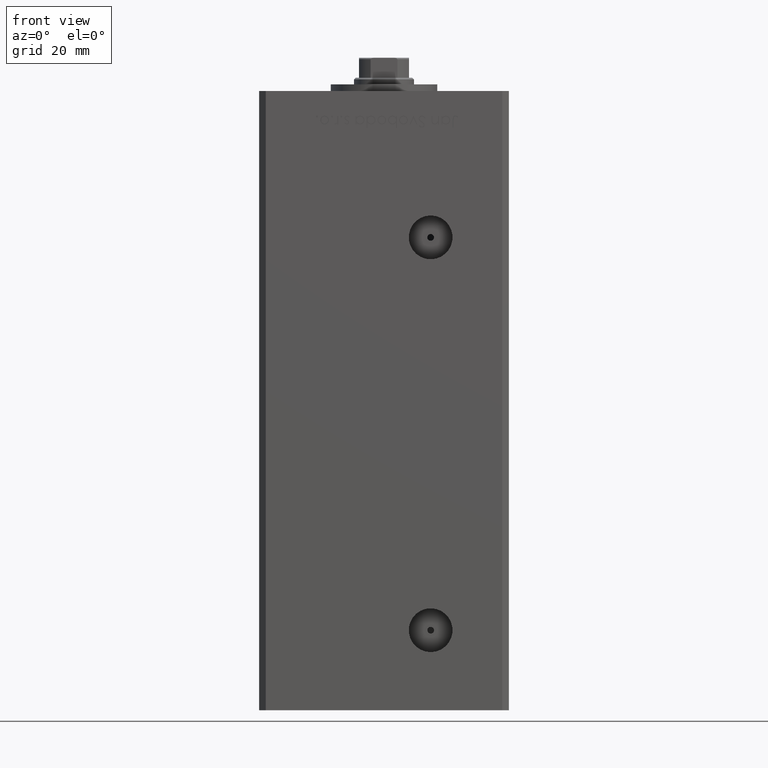
[diagram: clean part render]
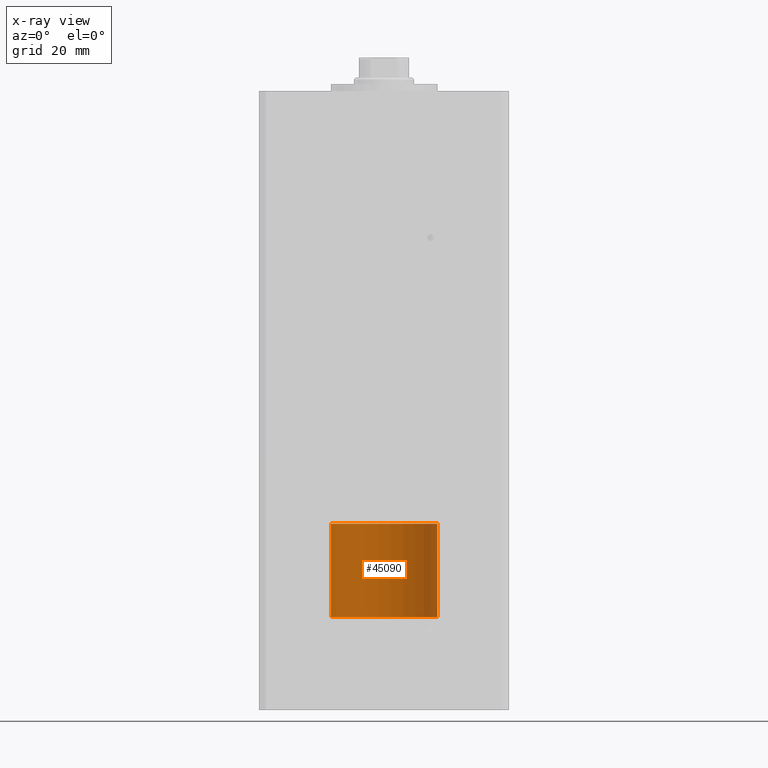
[diagram: x-ray — body ghosted, one internal face saturated and labeled with its STEP entity id]
A machine part, front view, then the same camera in x-ray: the body is ghosted and one INTERNAL B-rep face — a face not visible from any outside direction — is saturated and labeled: STEP entity #45090.
In plain terms, the highlighted cylindrical surface (partial cylindrical patch) has radius 16 mm, axis along (-0, -0, -1).
Its self-contained STEP definition (entity closure, byte-faithful):
#270 = VERTEX_POINT ( 'NONE', #8691 ) ;
#635 = EDGE_CURVE ( 'NONE', #47424, #50718, #23080, .T. ) ;
#1114 = LINE ( 'NONE', #42038, #22797 ) ;
#4270 = EDGE_CURVE ( 'NONE', #270, #47424, #51090, .T. ) ;
#6235 = AXIS2_PLACEMENT_3D ( 'NONE', #19974, #32669, #44788 ) ;
#8001 = VECTOR ( 'NONE', #15732, 1000.000000000000000 ) ;
#8143 = CYLINDRICAL_SURFACE ( 'NONE', #37228, 15.99999999999999645 ) ;
#8661 = CARTESIAN_POINT ( 'NONE',  ( 0.000000000000000000, 0.000000000000000000, 28.00000000000000000 ) ) ;
#8691 = CARTESIAN_POINT ( 'NONE',  ( 15.99999999999999645, 1.959434878635764737E-15, 28.00000000000000000 ) ) ;
#9416 = EDGE_LOOP ( 'NONE', ( #35901, #33212, #23389, #11003 ) ) ;
#11003 = ORIENTED_EDGE ( 'NONE', *, *, #30377, .F. ) ;
#15732 = DIRECTION ( 'NONE',  ( -0.000000000000000000, -0.000000000000000000, -1.000000000000000000 ) ) ;
#15995 = CARTESIAN_POINT ( 'NONE',  ( 15.99999999999999645, 1.959434878635764737E-15, 28.00000000000000000 ) ) ;
#16257 = EDGE_CURVE ( 'NONE', #270, #51050, #41931, .T. ) ;
#19974 = CARTESIAN_POINT ( 'NONE',  ( 0.000000000000000000, 0.000000000000000000, 0.000000000000000000 ) ) ;
#20529 = DIRECTION ( 'NONE',  ( -1.000000000000000000, 0.000000000000000000, 0.000000000000000000 ) ) ;
#22797 = VECTOR ( 'NONE', #45459, 1000.000000000000000 ) ;
#23080 = CIRCLE ( 'NONE', #6235, 15.99999999999999645 ) ;
#23389 = ORIENTED_EDGE ( 'NONE', *, *, #635, .T. ) ;
#26493 = DIRECTION ( 'NONE',  ( 1.000000000000000000, 0.000000000000000000, 0.000000000000000000 ) ) ;
#26770 = AXIS2_PLACEMENT_3D ( 'NONE', #47053, #30956, #26493 ) ;
#28482 = DIRECTION ( 'NONE',  ( -0.000000000000000000, -0.000000000000000000, -1.000000000000000000 ) ) ;
#30377 = EDGE_CURVE ( 'NONE', #51050, #50718, #1114, .T. ) ;
#30956 = DIRECTION ( 'NONE',  ( 0.000000000000000000, 0.000000000000000000, 1.000000000000000000 ) ) ;
#31920 = FACE_OUTER_BOUND ( 'NONE', #9416, .T. ) ;
#32669 = DIRECTION ( 'NONE',  ( 0.000000000000000000, 0.000000000000000000, 1.000000000000000000 ) ) ;
#33212 = ORIENTED_EDGE ( 'NONE', *, *, #4270, .T. ) ;
#35901 = ORIENTED_EDGE ( 'NONE', *, *, #16257, .F. ) ;
#37228 = AXIS2_PLACEMENT_3D ( 'NONE', #8661, #28482, #20529 ) ;
#40278 = CARTESIAN_POINT ( 'NONE',  ( 15.99999999999999645, 1.959434878635764737E-15, 0.000000000000000000 ) ) ;
#41931 = CIRCLE ( 'NONE', #26770, 15.99999999999999645 ) ;
#42038 = CARTESIAN_POINT ( 'NONE',  ( -15.99999999999999645, 0.000000000000000000, 28.00000000000000000 ) ) ;
#42060 = CARTESIAN_POINT ( 'NONE',  ( -15.99999999999999645, 0.000000000000000000, 0.000000000000000000 ) ) ;
#44328 = CARTESIAN_POINT ( 'NONE',  ( -15.99999999999999645, 0.000000000000000000, 28.00000000000000000 ) ) ;
#44788 = DIRECTION ( 'NONE',  ( 1.000000000000000000, 0.000000000000000000, 0.000000000000000000 ) ) ;
#45090 = ADVANCED_FACE ( 'NONE', ( #31920 ), #8143, .T. ) ;
#45459 = DIRECTION ( 'NONE',  ( -0.000000000000000000, -0.000000000000000000, -1.000000000000000000 ) ) ;
#47053 = CARTESIAN_POINT ( 'NONE',  ( 0.000000000000000000, 0.000000000000000000, 28.00000000000000000 ) ) ;
#47424 = VERTEX_POINT ( 'NONE', #40278 ) ;
#50718 = VERTEX_POINT ( 'NONE', #42060 ) ;
#51050 = VERTEX_POINT ( 'NONE', #44328 ) ;
#51090 = LINE ( 'NONE', #15995, #8001 ) ;